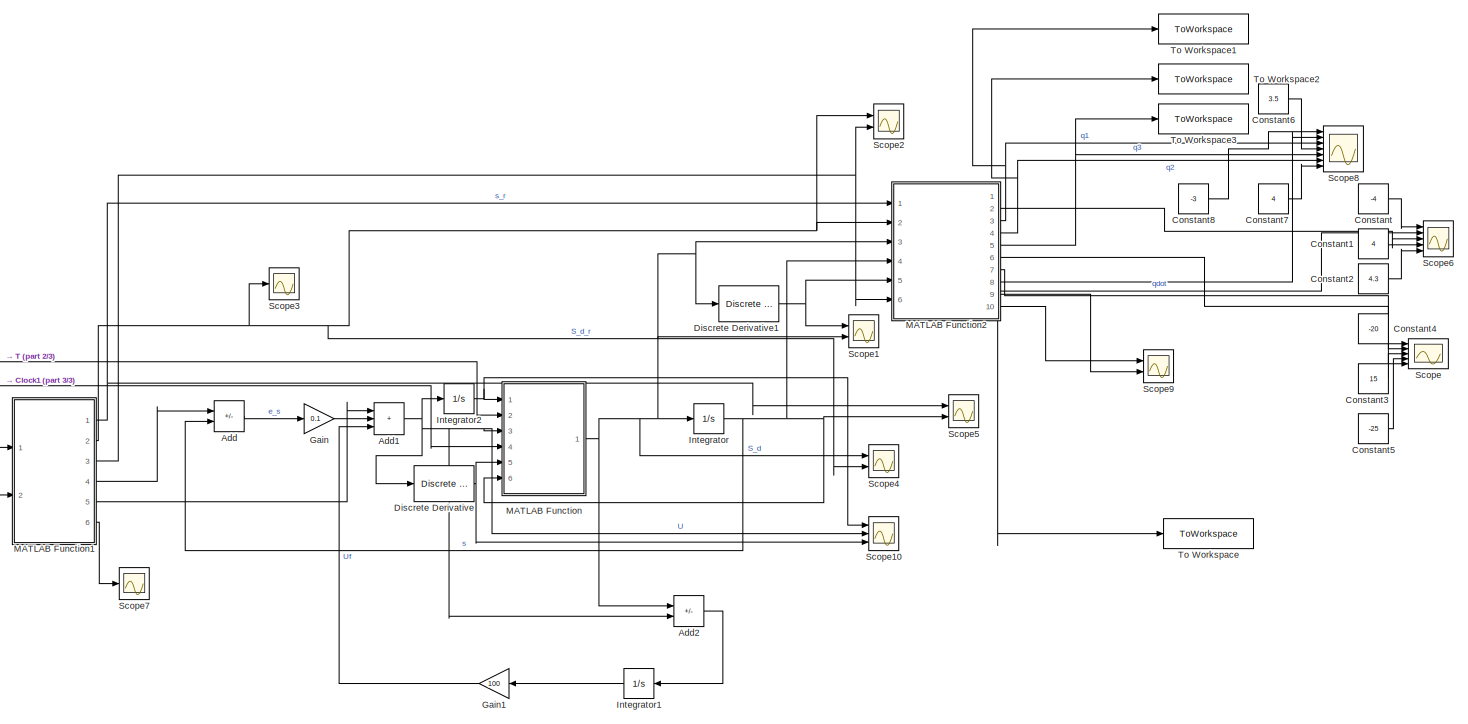
[diagram: root canvas - part 1/3, most of the canvas]
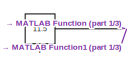
[diagram: root canvas - part 2/3, middle left region]
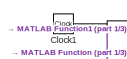
[diagram: root canvas - part 3/3, middle left region]
MODEL slx_f022dc85507b
KIND model
CONFIG AbsTol = auto
CONFIG EnableMultiTasking = off
CONFIG FixedStep = auto
CONFIG MaxStep = auto
CONFIG MinStep = auto
CONFIG RelTol = 1e-3
CONFIG SampleTimeConstraint = Unconstrained
CONFIG SolverName = VariableStepAuto
CONFIG StartTime = 0.0
CONFIG StopTime = 6
BLOCK [Sum] Add
  IconShape = rectangular
  Inputs = +-
  Ports = [2, 1]
BLOCK [Sum] Add1
  IconShape = rectangular
  Inputs = +++
  Ports = [3, 1]
BLOCK [Sum] Add2
  IconShape = rectangular
  Inputs = +-
  Ports = [2, 1]
BLOCK [Clock] Clock1
BLOCK [Constant] Constant
  Value = -4
BLOCK [Constant] Constant1
  Value = 4
BLOCK [Constant] Constant2
  Value = 4.3
BLOCK [Constant] Constant3
  Value = 15
BLOCK [Constant] Constant4
  Value = -20
BLOCK [Constant] Constant5
  Value = -25
BLOCK [Constant] Constant6
  Value = 3.5
BLOCK [Constant] Constant7
  Value = 4
BLOCK [Constant] Constant8
  Value = -3
BLOCK [Reference] Discrete Derivative  REF=simulink/Discrete/Discrete Derivative
  Ports = [1, 1]
  SourceBlock = simulink/Discrete/Discrete Derivative
  SourceProductBaseCode = SL
  SourceType = Discrete Derivative
BLOCK [Reference] Discrete Derivative1  REF=simulink/Discrete/Discrete Derivative
  Ports = [1, 1]
  SourceBlock = simulink/Discrete/Discrete Derivative
  SourceProductBaseCode = SL
  SourceType = Discrete Derivative
BLOCK [Gain] Gain
  Gain = 0.1
BLOCK [Gain] Gain1
  Gain = 100
BLOCK [Integrator] Integrator
  Ports = [1, 1]
BLOCK [Integrator] Integrator1
  Ports = [1, 1]
BLOCK [Integrator] Integrator2
  Ports = [1, 1]
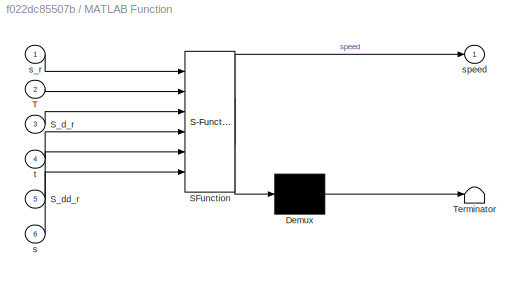
BLOCK [SubSystem] MATLAB Function
  ErrorFcn = Stateflow.Translate.translate
  PermitHierarchicalResolution = ExplicitOnly
  Ports = [6, 1]
  RequestExecContextInheritance = off
  SFBlockType = MATLAB Function
  TreatAsAtomicUnit = on
BLOCK [Demux] MATLAB Function/ Demux 
  Outputs = 1
  Ports = [1, 1]
BLOCK [S-Function] MATLAB Function/ SFunction 
  EnableBusSupport = on
  FunctionName = sf_sfun
  PortCounts = [6 2]
  Ports = [6, 2]
  SFcnIsStateOwnerBlock = off
  SFunctionDeploymentMode = off
  Tag = Stateflow S-Function 2
BLOCK [Terminator] MATLAB Function/ Terminator 
BLOCK [Inport] MATLAB Function/S_d_r
  Port = 3
BLOCK [Inport] MATLAB Function/S_dd_r
  Port = 5
BLOCK [Inport] MATLAB Function/T
  Port = 2
BLOCK [Inport] MATLAB Function/s
  Port = 6
BLOCK [Inport] MATLAB Function/s_r
BLOCK [Outport] MATLAB Function/speed
BLOCK [Inport] MATLAB Function/t
  Port = 4
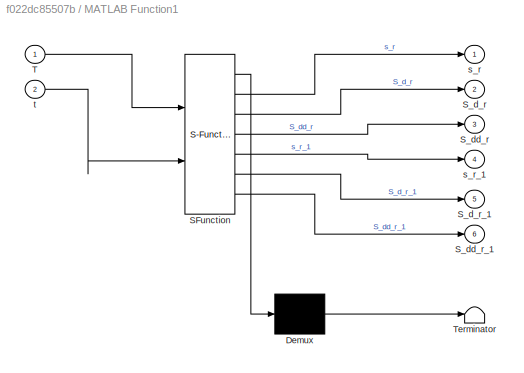
BLOCK [SubSystem] MATLAB Function1
  ErrorFcn = Stateflow.Translate.translate
  PermitHierarchicalResolution = ExplicitOnly
  Ports = [2, 6]
  RequestExecContextInheritance = off
  SFBlockType = MATLAB Function
  TreatAsAtomicUnit = on
BLOCK [Demux] MATLAB Function1/ Demux 
  Outputs = 1
  Ports = [1, 1]
BLOCK [S-Function] MATLAB Function1/ SFunction 
  EnableBusSupport = on
  FunctionName = sf_sfun
  PortCounts = [2 7]
  Ports = [2, 7]
  SFcnIsStateOwnerBlock = off
  SFunctionDeploymentMode = off
  Tag = Stateflow S-Function 3
BLOCK [Terminator] MATLAB Function1/ Terminator 
BLOCK [Outport] MATLAB Function1/S_d_r
  Port = 2
BLOCK [Outport] MATLAB Function1/S_d_r_1
  Port = 5
BLOCK [Outport] MATLAB Function1/S_dd_r
  Port = 3
BLOCK [Outport] MATLAB Function1/S_dd_r_1
  Port = 6
BLOCK [Inport] MATLAB Function1/T
BLOCK [Outport] MATLAB Function1/s_r
BLOCK [Outport] MATLAB Function1/s_r_1
  Port = 4
BLOCK [Inport] MATLAB Function1/t
  Port = 2
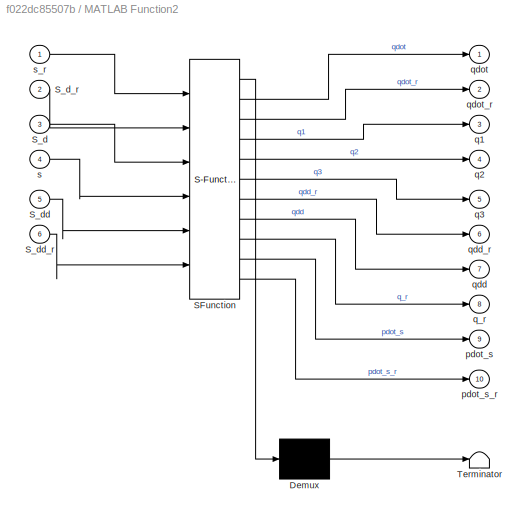
BLOCK [SubSystem] MATLAB Function2
  ErrorFcn = Stateflow.Translate.translate
  PermitHierarchicalResolution = ExplicitOnly
  Ports = [6, 10]
  RequestExecContextInheritance = off
  SFBlockType = MATLAB Function
  TreatAsAtomicUnit = on
BLOCK [Demux] MATLAB Function2/ Demux 
  Outputs = 1
  Ports = [1, 1]
BLOCK [S-Function] MATLAB Function2/ SFunction 
  EnableBusSupport = on
  FunctionName = sf_sfun
  PortCounts = [6 11]
  Ports = [6, 11]
  SFcnIsStateOwnerBlock = off
  SFunctionDeploymentMode = off
  Tag = Stateflow S-Function 4
BLOCK [Terminator] MATLAB Function2/ Terminator 
BLOCK [Inport] MATLAB Function2/S_d
  Port = 3
BLOCK [Inport] MATLAB Function2/S_d_r
  Port = 2
BLOCK [Inport] MATLAB Function2/S_dd
  Port = 5
BLOCK [Inport] MATLAB Function2/S_dd_r
  Port = 6
BLOCK [Outport] MATLAB Function2/pdot_s
  Port = 9
BLOCK [Outport] MATLAB Function2/pdot_s_r
  Port = 10
BLOCK [Outport] MATLAB Function2/q1
  Port = 3
BLOCK [Outport] MATLAB Function2/q2
  Port = 4
BLOCK [Outport] MATLAB Function2/q3
  Port = 5
BLOCK [Outport] MATLAB Function2/q_r
  Port = 8
BLOCK [Outport] MATLAB Function2/qdd
  Port = 7
BLOCK [Outport] MATLAB Function2/qdd_r
  Port = 6
BLOCK [Outport] MATLAB Function2/qdot
BLOCK [Outport] MATLAB Function2/qdot_r
  Port = 2
BLOCK [Inport] MATLAB Function2/s
  Port = 4
BLOCK [Inport] MATLAB Function2/s_r
BLOCK [Scope] Scope
  Floating = off
  NumInputPorts = 5
  Ports = [5]
  ScopeSpecificationString = Simulink.scopes.TimeScopeBlockCfg('CurrentConfiguration', extmgr.ConfigurationSet(extmgr.Configuration('Core','General UI',true,'FigureColor',[1 1 1]),extmgr.Configuration('Core','Source UI',true),extmgr.Configuration('Sources','WiredSimulink',true,'DataLoggingVariableName','ScopeData1'),extmgr.Configuration('Visuals','Time Domain',true,'SerializedDisplays',{struct('MinYLimReal','-30.00000','MaxYL...<+2666ch>
BLOCK [Scope] Scope1
  Floating = off
  NumInputPorts = 2
  Ports = [2]
  ScopeSpecificationString = Simulink.scopes.TimeScopeBlockCfg('CurrentConfiguration', extmgr.ConfigurationSet(extmgr.Configuration('Core','General UI',true),extmgr.Configuration('Core','Source UI',true),extmgr.Configuration('Sources','WiredSimulink',true,'DataLoggingVariableName','ScopeData2'),extmgr.Configuration('Visuals','Time Domain',true,'SerializedDisplays',{struct('MinYLimReal','-0.0632','MaxYLimReal','0.17296','YLabe...<+1383ch>
BLOCK [Scope] Scope10
  Floating = off
  NumInputPorts = 3
  Ports = [3]
  ScopeSpecificationString = Simulink.scopes.TimeScopeBlockCfg('CurrentConfiguration', extmgr.ConfigurationSet(extmgr.Configuration('Core','General UI',true),extmgr.Configuration('Core','Source UI',true),extmgr.Configuration('Sources','WiredSimulink',true,'DataLoggingVariableName','ScopeData2'),extmgr.Configuration('Visuals','Time Domain',true,'SerializedDisplays',{struct('MinYLimReal','-0.17411','MaxYLimReal','1.13046','YLab...<+1427ch>
BLOCK [Scope] Scope2
  Floating = off
  NumInputPorts = 2
  Ports = [2]
  ScopeSpecificationString = Simulink.scopes.TimeScopeBlockCfg('CurrentConfiguration', extmgr.ConfigurationSet(extmgr.Configuration('Core','General UI',true),extmgr.Configuration('Core','Source UI',true),extmgr.Configuration('Sources','WiredSimulink',true,'DataLoggingVariableName','ScopeData1'),extmgr.Configuration('Visuals','Time Domain',true,'SerializedDisplays',{struct('MinYLimReal','-0.10419','MaxYLimReal','0.24051','YLab...<+1390ch>
BLOCK [Scope] Scope3
  Floating = off
  NumInputPorts = 1
  Ports = [1]
  ScopeSpecificationString = Simulink.scopes.TimeScopeBlockCfg('CurrentConfiguration', extmgr.ConfigurationSet(extmgr.Configuration('Core','General UI',true),extmgr.Configuration('Core','Source UI',true),extmgr.Configuration('Sources','WiredSimulink',true,'DataLoggingVariableName','ScopeData3'),extmgr.Configuration('Visuals','Time Domain',true,'SerializedDisplays',{struct('MinYLimReal','-0.02038','MaxYLimReal','0.18342','YLab...<+1364ch>
BLOCK [Scope] Scope4
  Floating = off
  NumInputPorts = 2
  Ports = [2]
  ScopeSpecificationString = Simulink.scopes.TimeScopeBlockCfg('CurrentConfiguration', extmgr.ConfigurationSet(extmgr.Configuration('Core','General UI',true),extmgr.Configuration('Core','Source UI',true),extmgr.Configuration('Sources','WiredSimulink',true,'DataLoggingVariableName','ScopeData1'),extmgr.Configuration('Visuals','Time Domain',true,'SerializedDisplays',{struct('MinYLimReal','-0.02038','MaxYLimReal','0.18342','YLab...<+1370ch>
BLOCK [Scope] Scope5
  Floating = off
  NumInputPorts = 2
  Ports = [2]
  ScopeSpecificationString = Simulink.scopes.TimeScopeBlockCfg('CurrentConfiguration', extmgr.ConfigurationSet(extmgr.Configuration('Core','General UI',true),extmgr.Configuration('Core','Source UI',true),extmgr.Configuration('Sources','WiredSimulink',true,'DataLoggingVariableName','ScopeData5'),extmgr.Configuration('Visuals','Time Domain',true,'SerializedDisplays',{struct('MinYLimReal','-0.125','MaxYLimReal','1.125','YLabelRe...<+1430ch>
BLOCK [Scope] Scope6
  Floating = off
  NumInputPorts = 5
  Ports = [5]
  ScopeSpecificationString = Simulink.scopes.TimeScopeBlockCfg('CurrentConfiguration', extmgr.ConfigurationSet(extmgr.Configuration('Core','General UI',true,'FigureColor',[1 1 1]),extmgr.Configuration('Core','Source UI',true),extmgr.Configuration('Sources','WiredSimulink',true,'DataLoggingVariableName','ScopeData6'),extmgr.Configuration('Visuals','Time Domain',true,'SerializedDisplays',{struct('MinYLimReal','-5.04583','MaxYLi...<+2785ch>
BLOCK [Scope] Scope7
  Floating = off
  NumInputPorts = 1
  Ports = [1]
  ScopeSpecificationString = Simulink.scopes.TimeScopeBlockCfg('CurrentConfiguration', extmgr.ConfigurationSet(extmgr.Configuration('Core','General UI',true),extmgr.Configuration('Core','Source UI',true),extmgr.Configuration('Sources','WiredSimulink',true,'DataLoggingVariableName','ScopeData1'),extmgr.Configuration('Visuals','Time Domain',true),extmgr.Configuration('Tools','Plot Navigation',true),extmgr.Configuration('Tools',...<+40ch>
BLOCK [Scope] Scope8
  Floating = off
  NumInputPorts = 7
  Ports = [7]
  ScopeSpecificationString = Simulink.scopes.TimeScopeBlockCfg('CurrentConfiguration', extmgr.ConfigurationSet(extmgr.Configuration('Core','General UI',true,'FigureColor',[1 1 1]),extmgr.Configuration('Core','Source UI',true),extmgr.Configuration('Sources','WiredSimulink',true,'DataLoggingVariableName','ScopeData1'),extmgr.Configuration('Visuals','Time Domain',true,'SerializedDisplays',{struct('MinYLimReal','-3.875','MaxYLimR...<+2251ch>
BLOCK [Scope] Scope9
  Floating = off
  NumInputPorts = 2
  Ports = [2]
  ScopeSpecificationString = Simulink.scopes.TimeScopeBlockCfg('CurrentConfiguration', extmgr.ConfigurationSet(extmgr.Configuration('Core','General UI',true),extmgr.Configuration('Core','Source UI',true),extmgr.Configuration('Sources','WiredSimulink',true,'DataLoggingVariableName','ScopeData1'),extmgr.Configuration('Visuals','Time Domain',true,'SerializedDisplays',{struct('MinYLimReal','-2.21374','MaxYLimReal','2.52249','YLab...<+1698ch>
BLOCK [Constant] T
  Value = 11.5
BLOCK [ToWorkspace] To Workspace
  FixptAsFi = on
  MaxDataPoints = inf
  Ports = [1]
  SampleTime = -1
  VariableName = simout
BLOCK [ToWorkspace] To Workspace1
  FixptAsFi = on
  MaxDataPoints = inf
  Ports = [1]
  SampleTime = -1
  VariableName = q1
BLOCK [ToWorkspace] To Workspace2
  FixptAsFi = on
  MaxDataPoints = inf
  Ports = [1]
  SampleTime = -1
  VariableName = q2
BLOCK [ToWorkspace] To Workspace3
  FixptAsFi = on
  MaxDataPoints = inf
  Ports = [1]
  SampleTime = -1
  VariableName = q3
NET Add1:1 -> Add2:2, Discrete Derivative:1, Integrator2:1, MATLAB Function:3, Scope10:2
LINE Add2:1 -> Integrator1:1
LINE Add:1 -> Gain:1
NET Clock1:1 -> MATLAB Function1:2, MATLAB Function:4
LINE Constant1:1 -> Scope6:4
LINE Constant2:1 -> Scope6:5
LINE Constant3:1 -> Scope:3
LINE Constant4:1 -> Scope:2
LINE Constant5:1 -> Scope:4
LINE Constant6:1 -> Scope8:4
LINE Constant7:1 -> Scope8:7
LINE Constant8:1 -> Scope8:1
LINE Constant:1 -> Scope6:1
NET Discrete Derivative1:1 -> MATLAB Function2:5, Scope1:1
NET Discrete Derivative:1 -> MATLAB Function:5, Scope10:3
LINE Gain1:1 -> Add1:3
LINE Gain:1 -> Add1:2
LINE Integrator1:1 -> Gain1:1
NET Integrator2:1 -> MATLAB Function:1, Scope10:1
NET Integrator:1 -> Add:2, MATLAB Function2:4, MATLAB Function:6, Scope5:2
NET MATLAB Function1:1 -> MATLAB Function2:1, Scope5:1
NET MATLAB Function1:2 -> MATLAB Function2:2, Scope2:1, Scope3:1, Scope4:2
NET MATLAB Function1:3 -> MATLAB Function2:6, Scope2:2
LINE MATLAB Function1:4 -> Add:1
LINE MATLAB Function1:5 -> Add1:1
LINE MATLAB Function1:6 -> Scope7:1
NET MATLAB Function2:1 -> Scope6:2, To Workspace:1
LINE MATLAB Function2:10 -> Scope9:1
LINE MATLAB Function2:2 -> Scope6:3
NET MATLAB Function2:3 -> Scope8:3, To Workspace1:1
NET MATLAB Function2:4 -> Scope8:6, To Workspace2:1
NET MATLAB Function2:5 -> Scope8:5, To Workspace3:1
LINE MATLAB Function2:6 -> Scope:1
LINE MATLAB Function2:7 -> Scope:5
LINE MATLAB Function2:8 -> Scope8:2
LINE MATLAB Function2:9 -> Scope9:2
NET MATLAB Function:1 -> Add2:1, Discrete Derivative1:1, Integrator:1, MATLAB Function2:3, Scope1:2, Scope4:1
NET T:1 -> MATLAB Function1:1, MATLAB Function:2
note: NET lines group one-source signal fan-out (src -> all destinations, sorted); 1:1 wires keep LINE
CHART MATLAB Function states=1 transitions=1
  STATE_LABEL 'eML_blk_kernel()'
  STATE_LABEL "SCRIPT:\nfunction speed = trajectory(s_r, T, S_d_r,t, S_dd_r, s)\n\n%Links length\nl1 = 1; l2 =1; l3 = 1;\n\n%Trajectory\n\n\n%%% REFERENCE\n\n\np_s_r =  [s_r + 1;\n    1 + sin(4*pi*s_r);\n    s_r];\n\nR1_s_r=[1;\n        4*pi*cos(4*pi*s_r);\n        1];\n\n%Velocity of the trajectory\n\n\n%%pdot = R'*s'(t)\n\n\n\n\n%%% REFERENCE\n\n%%%POLYNOMIAL OF DEGREE 5 ---  0.4808 saturation --- 3.9 seconds\n% pdot_s_r=[ -(30*t^2*pi*sin((...<+3608ch>"
CHART MATLAB Function1 states=1 transitions=1
  STATE_LABEL 'eML_blk_kernel()'
  STATE_LABEL 'SCRIPT:\nfunction [s_r, S_d_r, S_dd_r,s_r_1, S_d_r_1, S_dd_r_1] = timing_law(T, t)\nif t <T\n    tau_t=t/T;\n    %s_r = -2*tau_t^3 + 3*tau_t^2;\n    %S_d_r=(6*t)/T^2 - (6*t^2)/T^3;\n    s_r = 10*tau_t^3 - 15*tau_t^4 + 6*tau_t^5;\n    S_d_r = (30*t^2)/T^3 - (60*t^3)/T^4 + (30*t^4)/T^5;\n    S_dd_r = (60*t)/T^3 - (180*t^2)/T^4 + (120*t^3)/T^5;\n\n    t_1 = t +0.0001;\n    tau_t_1 = t_1/T;\n    s_r_1 = 10*tau_t_...<+265ch>'
CHART MATLAB Function2 states=1 transitions=1
  STATE_LABEL 'eML_blk_kernel()'
  STATE_LABEL 'SCRIPT:\nfunction [qdot,qdot_r,q1,q2,q3, qdd_r, qdd, q_r, pdot_s, pdot_s_r] = trajectory(s_r, S_d_r, S_d, s, S_dd, S_dd_r)\n\n%Links length\nl1 = 1; l2 =1; l3 = 1;\n\n%Trajectory\n\np_s = [s + 1;\n    1 + sin(4*pi*s);\n    s];\n\np_s_r =  [s_r + 1;\n    1 + sin(4*pi*s_r);\n    s_r];\n\np1_s=[1;\n        4*pi*cos(4*pi*s);\n        1];\np1_s_r=[1;\n        4*pi*cos(4*pi*s_r);\n        1];\n\npdot_s= p1_s* S_d ;\n\n         ...<+3608ch>'
CHART  states=0 transitions=0
CHART  states=0 transitions=0
CHART  states=0 transitions=0
